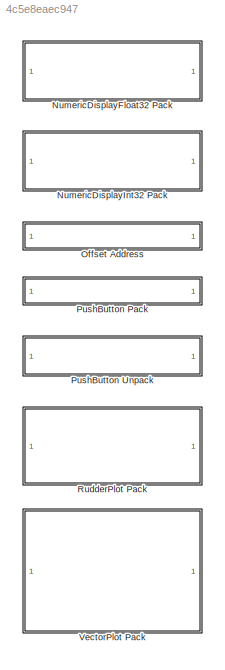
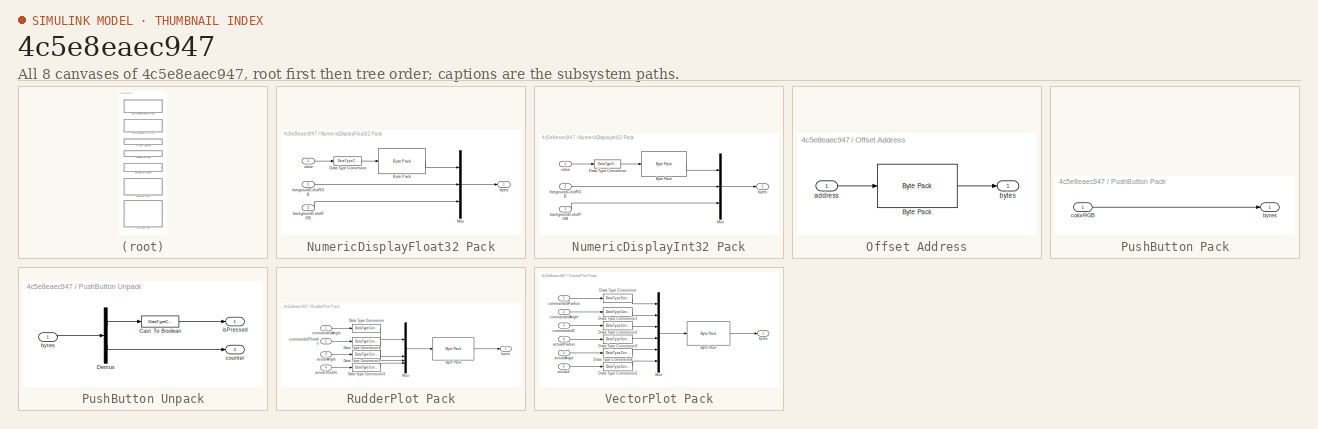
[diagram: thumbnail index - all 8 canvases of the model, root first then tree order]
MODEL slx_4c5e8eaec947
KIND library
CONFIG AbsTol = auto
CONFIG EnableMultiTasking = off
CONFIG FixedStep = auto
CONFIG MaxStep = auto
CONFIG MinStep = auto
CONFIG RelTol = 1e-3
CONFIG SampleTimeConstraint = Unconstrained
CONFIG SolverName = VariableStepAuto
CONFIG StartTime = 0.0
CONFIG StopTime = 10.0
BLOCK [SubSystem] NumericDisplayFloat32 Pack
BLOCK [Reference] NumericDisplayFloat32 Pack/Byte Pack  REF=etargetslib/Byte Pack
  LibrarySourceBlock = embeddedtargetslib/Host Communication/Byte Pack
  SourceBlock = etargetslib/Byte Pack
  SourceType = Byte pack
BLOCK [DataTypeConversion] NumericDisplayFloat32 Pack/Data Type Conversion
  OutDataTypeStr = single
  RndMeth = Floor
  SaturateOnIntegerOverflow = off
BLOCK [Mux] NumericDisplayFloat32 Pack/Mux
  DisplayOption = bar
  Inputs = 3
BLOCK [Inport] NumericDisplayFloat32 Pack/backgroundColorRGB
  OutDataTypeStr = uint8
  Port = 3
  PortDimensions = 3
BLOCK [Outport] NumericDisplayFloat32 Pack/bytes
BLOCK [Inport] NumericDisplayFloat32 Pack/foregroundColorRGB
  OutDataTypeStr = uint8
  Port = 2
  PortDimensions = 3
BLOCK [Inport] NumericDisplayFloat32 Pack/value
  PortDimensions = 1
BLOCK [SubSystem] NumericDisplayInt32 Pack
BLOCK [Reference] NumericDisplayInt32 Pack/Byte Pack  REF=etargetslib/Byte Pack
  LibrarySourceBlock = embeddedtargetslib/Host Communication/Byte Pack
  SourceBlock = etargetslib/Byte Pack
  SourceType = Byte pack
BLOCK [DataTypeConversion] NumericDisplayInt32 Pack/Data Type Conversion
  OutDataTypeStr = int32
  RndMeth = Floor
  SaturateOnIntegerOverflow = off
BLOCK [Mux] NumericDisplayInt32 Pack/Mux
  DisplayOption = bar
  Inputs = 3
BLOCK [Inport] NumericDisplayInt32 Pack/backgroundColorRGB
  OutDataTypeStr = uint8
  Port = 3
  PortDimensions = 3
BLOCK [Outport] NumericDisplayInt32 Pack/bytes
BLOCK [Inport] NumericDisplayInt32 Pack/foregroundColorRGB
  OutDataTypeStr = uint8
  Port = 2
  PortDimensions = 3
BLOCK [Inport] NumericDisplayInt32 Pack/value
  PortDimensions = 1
BLOCK [SubSystem] Offset Address
BLOCK [Reference] Offset Address/Byte Pack  REF=etargetslib/Byte Pack
  LibrarySourceBlock = embeddedtargetslib/Host Communication/Byte Pack
  SourceBlock = etargetslib/Byte Pack
  SourceType = Byte pack
BLOCK [Inport] Offset Address/address
  OutDataTypeStr = uint32
  PortDimensions = 1
BLOCK [Outport] Offset Address/bytes
  OutDataTypeStr = uint8
  PortDimensions = 4
BLOCK [SubSystem] PushButton Pack
BLOCK [Outport] PushButton Pack/bytes
  OutDataTypeStr = uint8
  PortDimensions = 3
BLOCK [Inport] PushButton Pack/colorRGB
  OutDataTypeStr = uint8
  PortDimensions = 3
BLOCK [SubSystem] PushButton Unpack
BLOCK [DataTypeConversion] PushButton Unpack/Cast To Boolean
  OutDataTypeStr = boolean
  RndMeth = Floor
  SaturateOnIntegerOverflow = off
BLOCK [Demux] PushButton Unpack/Demux
  Outputs = 2
BLOCK [Inport] PushButton Unpack/bytes
  OutDataTypeStr = uint8
  PortDimensions = 2
BLOCK [Outport] PushButton Unpack/counter
  OutDataTypeStr = uint8
  Port = 2
  PortDimensions = 1
BLOCK [Outport] PushButton Unpack/isPressed
  OutDataTypeStr = boolean
  PortDimensions = 1
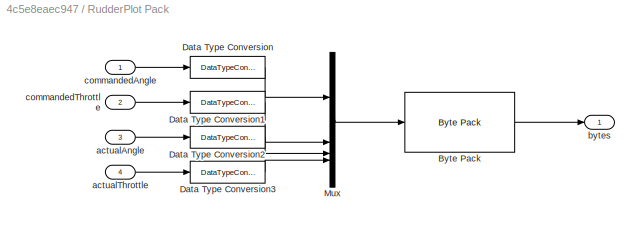
BLOCK [SubSystem] RudderPlot Pack
BLOCK [Reference] RudderPlot Pack/Byte Pack  REF=etargetslib/Byte Pack
  LibrarySourceBlock = embeddedtargetslib/Host Communication/Byte Pack
  SourceBlock = etargetslib/Byte Pack
  SourceType = Byte pack
BLOCK [DataTypeConversion] RudderPlot Pack/Data Type Conversion
  OutDataTypeStr = single
  RndMeth = Floor
  SaturateOnIntegerOverflow = off
BLOCK [DataTypeConversion] RudderPlot Pack/Data Type Conversion1
  OutDataTypeStr = single
  RndMeth = Floor
  SaturateOnIntegerOverflow = off
BLOCK [DataTypeConversion] RudderPlot Pack/Data Type Conversion2
  OutDataTypeStr = single
  RndMeth = Floor
  SaturateOnIntegerOverflow = off
BLOCK [DataTypeConversion] RudderPlot Pack/Data Type Conversion3
  OutDataTypeStr = single
  RndMeth = Floor
  SaturateOnIntegerOverflow = off
BLOCK [Mux] RudderPlot Pack/Mux
  DisplayOption = bar
BLOCK [Inport] RudderPlot Pack/actualAngle
  Port = 3
  PortDimensions = 1
  Unit = rad
BLOCK [Inport] RudderPlot Pack/actualThrottle
  Port = 4
  PortDimensions = 1
BLOCK [Outport] RudderPlot Pack/bytes
  OutDataTypeStr = uint8
  PortDimensions = 16
BLOCK [Inport] RudderPlot Pack/commandedAngle
  PortDimensions = 1
  Unit = rad
BLOCK [Inport] RudderPlot Pack/commandedThrottle
  Port = 2
  PortDimensions = 1
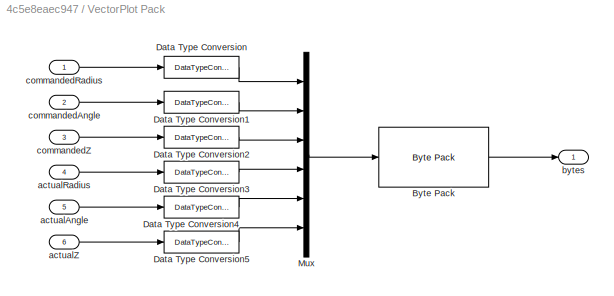
BLOCK [SubSystem] VectorPlot Pack
BLOCK [Reference] VectorPlot Pack/Byte Pack  REF=etargetslib/Byte Pack
  LibrarySourceBlock = embeddedtargetslib/Host Communication/Byte Pack
  SourceBlock = etargetslib/Byte Pack
  SourceType = Byte pack
BLOCK [DataTypeConversion] VectorPlot Pack/Data Type Conversion
  OutDataTypeStr = single
  RndMeth = Floor
  SaturateOnIntegerOverflow = off
BLOCK [DataTypeConversion] VectorPlot Pack/Data Type Conversion1
  OutDataTypeStr = single
  RndMeth = Floor
  SaturateOnIntegerOverflow = off
BLOCK [DataTypeConversion] VectorPlot Pack/Data Type Conversion2
  OutDataTypeStr = single
  RndMeth = Floor
  SaturateOnIntegerOverflow = off
BLOCK [DataTypeConversion] VectorPlot Pack/Data Type Conversion3
  OutDataTypeStr = single
  RndMeth = Floor
  SaturateOnIntegerOverflow = off
BLOCK [DataTypeConversion] VectorPlot Pack/Data Type Conversion4
  OutDataTypeStr = single
  RndMeth = Floor
  SaturateOnIntegerOverflow = off
BLOCK [DataTypeConversion] VectorPlot Pack/Data Type Conversion5
  OutDataTypeStr = single
  RndMeth = Floor
  SaturateOnIntegerOverflow = off
BLOCK [Mux] VectorPlot Pack/Mux
  DisplayOption = bar
  Inputs = 6
BLOCK [Inport] VectorPlot Pack/actualAngle
  Port = 5
  PortDimensions = 1
  Unit = rad
BLOCK [Inport] VectorPlot Pack/actualRadius
  Port = 4
  PortDimensions = 1
BLOCK [Inport] VectorPlot Pack/actualZ
  Port = 6
  PortDimensions = 1
BLOCK [Outport] VectorPlot Pack/bytes
  OutDataTypeStr = uint8
  PortDimensions = 24
BLOCK [Inport] VectorPlot Pack/commandedAngle
  Port = 2
  PortDimensions = 1
  Unit = rad
BLOCK [Inport] VectorPlot Pack/commandedRadius
  PortDimensions = 1
BLOCK [Inport] VectorPlot Pack/commandedZ
  Port = 3
  PortDimensions = 1
LINE NumericDisplayFloat32 Pack/Byte Pack:1 -> NumericDisplayFloat32 Pack/Mux:1
LINE NumericDisplayFloat32 Pack/Data Type Conversion:1 -> NumericDisplayFloat32 Pack/Byte Pack:1
LINE NumericDisplayFloat32 Pack/Mux:1 -> NumericDisplayFloat32 Pack/bytes:1
LINE NumericDisplayFloat32 Pack/backgroundColorRGB:1 -> NumericDisplayFloat32 Pack/Mux:3
LINE NumericDisplayFloat32 Pack/foregroundColorRGB:1 -> NumericDisplayFloat32 Pack/Mux:2
LINE NumericDisplayFloat32 Pack/value:1 -> NumericDisplayFloat32 Pack/Data Type Conversion:1
LINE NumericDisplayInt32 Pack/Byte Pack:1 -> NumericDisplayInt32 Pack/Mux:1
LINE NumericDisplayInt32 Pack/Data Type Conversion:1 -> NumericDisplayInt32 Pack/Byte Pack:1
LINE NumericDisplayInt32 Pack/Mux:1 -> NumericDisplayInt32 Pack/bytes:1
LINE NumericDisplayInt32 Pack/backgroundColorRGB:1 -> NumericDisplayInt32 Pack/Mux:3
LINE NumericDisplayInt32 Pack/foregroundColorRGB:1 -> NumericDisplayInt32 Pack/Mux:2
LINE NumericDisplayInt32 Pack/value:1 -> NumericDisplayInt32 Pack/Data Type Conversion:1
LINE Offset Address/Byte Pack:1 -> Offset Address/bytes:1
LINE Offset Address/address:1 -> Offset Address/Byte Pack:1
LINE PushButton Pack/colorRGB:1 -> PushButton Pack/bytes:1
LINE PushButton Unpack/Cast To Boolean:1 -> PushButton Unpack/isPressed:1
LINE PushButton Unpack/Demux:1 -> PushButton Unpack/Cast To Boolean:1
LINE PushButton Unpack/Demux:2 -> PushButton Unpack/counter:1
LINE PushButton Unpack/bytes:1 -> PushButton Unpack/Demux:1
LINE RudderPlot Pack/Byte Pack:1 -> RudderPlot Pack/bytes:1
LINE RudderPlot Pack/Data Type Conversion1:1 -> RudderPlot Pack/Mux:2
LINE RudderPlot Pack/Data Type Conversion2:1 -> RudderPlot Pack/Mux:3
LINE RudderPlot Pack/Data Type Conversion3:1 -> RudderPlot Pack/Mux:4
LINE RudderPlot Pack/Data Type Conversion:1 -> RudderPlot Pack/Mux:1
LINE RudderPlot Pack/Mux:1 -> RudderPlot Pack/Byte Pack:1
LINE RudderPlot Pack/actualAngle:1 -> RudderPlot Pack/Data Type Conversion2:1
LINE RudderPlot Pack/actualThrottle:1 -> RudderPlot Pack/Data Type Conversion3:1
LINE RudderPlot Pack/commandedAngle:1 -> RudderPlot Pack/Data Type Conversion:1
LINE RudderPlot Pack/commandedThrottle:1 -> RudderPlot Pack/Data Type Conversion1:1
LINE VectorPlot Pack/Byte Pack:1 -> VectorPlot Pack/bytes:1
LINE VectorPlot Pack/Data Type Conversion1:1 -> VectorPlot Pack/Mux:2
LINE VectorPlot Pack/Data Type Conversion2:1 -> VectorPlot Pack/Mux:3
LINE VectorPlot Pack/Data Type Conversion3:1 -> VectorPlot Pack/Mux:4
LINE VectorPlot Pack/Data Type Conversion4:1 -> VectorPlot Pack/Mux:5
LINE VectorPlot Pack/Data Type Conversion5:1 -> VectorPlot Pack/Mux:6
LINE VectorPlot Pack/Data Type Conversion:1 -> VectorPlot Pack/Mux:1
LINE VectorPlot Pack/Mux:1 -> VectorPlot Pack/Byte Pack:1
LINE VectorPlot Pack/actualAngle:1 -> VectorPlot Pack/Data Type Conversion4:1
LINE VectorPlot Pack/actualRadius:1 -> VectorPlot Pack/Data Type Conversion3:1
LINE VectorPlot Pack/actualZ:1 -> VectorPlot Pack/Data Type Conversion5:1
LINE VectorPlot Pack/commandedAngle:1 -> VectorPlot Pack/Data Type Conversion1:1
LINE VectorPlot Pack/commandedRadius:1 -> VectorPlot Pack/Data Type Conversion:1
LINE VectorPlot Pack/commandedZ:1 -> VectorPlot Pack/Data Type Conversion2:1
